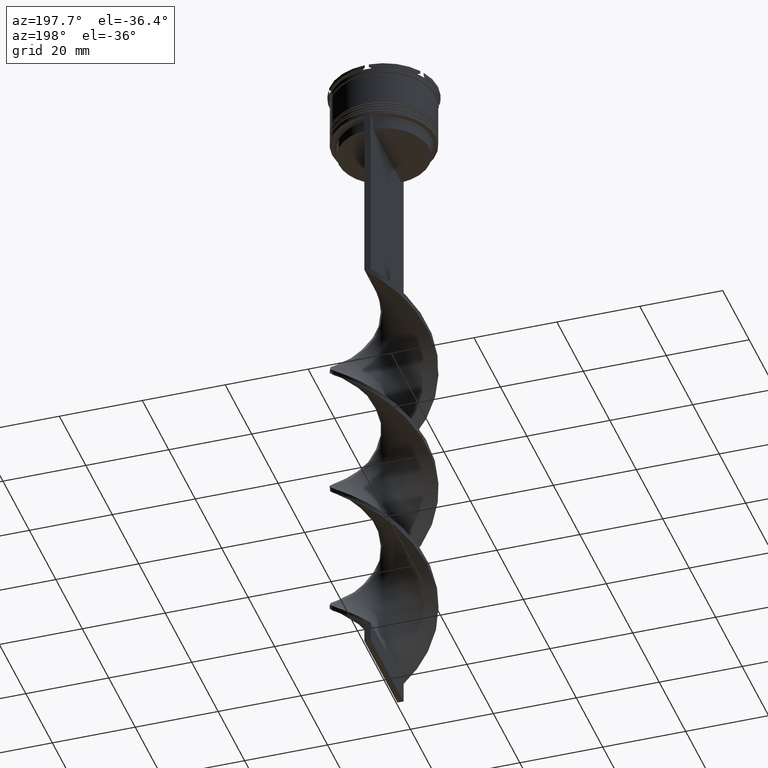
[diagram: clean part render]
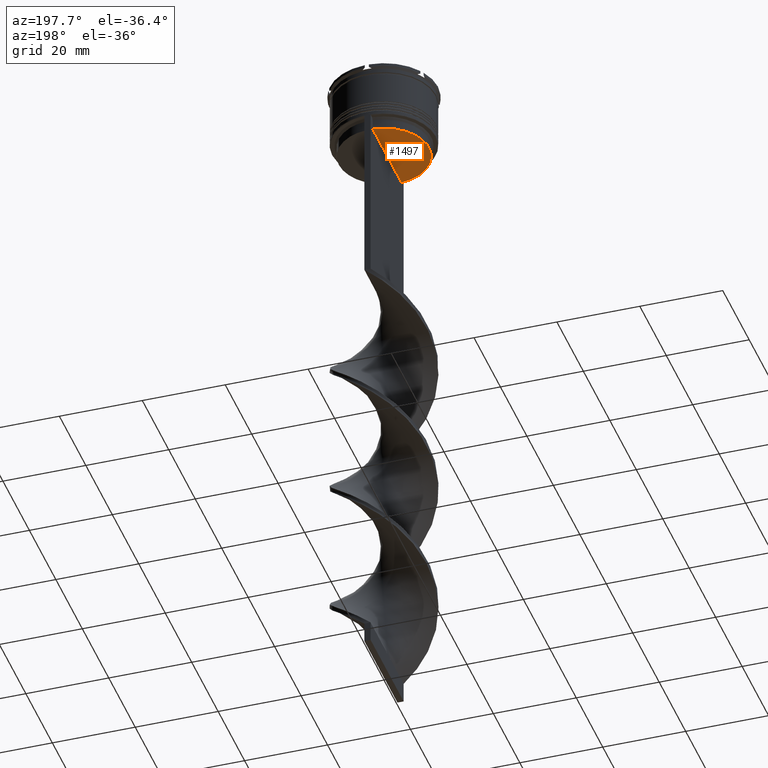
[diagram: same view with one face highlighted and labeled with its STEP entity id]
A machine part, auxiliary view. The second image highlights one B-rep face of the part: STEP entity #1497.
In plain terms, the highlighted planar face has unit normal (0, -0, 1).
Its self-contained STEP definition (entity closure, byte-faithful):
#46 = DIRECTION ( 'NONE',  ( 1.000000000000000000, 0.000000000000000000, 0.000000000000000000 ) ) ;
#448 = LINE ( 'NONE', #3339, #3097 ) ;
#646 = EDGE_LOOP ( 'NONE', ( #2756, #767 ) ) ;
#767 = ORIENTED_EDGE ( 'NONE', *, *, #3558, .T. ) ;
#826 = AXIS2_PLACEMENT_3D ( 'NONE', #3199, #933, #46 ) ;
#868 = DIRECTION ( 'NONE',  ( 0.000000000000000000, -1.000000000000000000, 0.000000000000000000 ) ) ;
#933 = DIRECTION ( 'NONE',  ( -0.000000000000000000, -0.000000000000000000, 1.000000000000000000 ) ) ;
#976 = PLANE ( 'NONE',  #3024 ) ;
#1308 = CARTESIAN_POINT ( 'NONE',  ( 0.000000000000000000, 10.90000000000000213, -17.00000000000000000 ) ) ;
#1497 = ADVANCED_FACE ( 'NONE', ( #1987 ), #976, .F. ) ;
#1899 = DIRECTION ( 'NONE',  ( 1.000000000000000000, 0.000000000000000000, 0.000000000000000000 ) ) ;
#1910 = VERTEX_POINT ( 'NONE', #3382 ) ;
#1987 = FACE_OUTER_BOUND ( 'NONE', #646, .T. ) ;
#2127 = CARTESIAN_POINT ( 'NONE',  ( -0.7499999999999997780, 10.87416663473574019, -17.00000000000000000 ) ) ;
#2684 = VERTEX_POINT ( 'NONE', #2127 ) ;
#2756 = ORIENTED_EDGE ( 'NONE', *, *, #3811, .F. ) ;
#3024 = AXIS2_PLACEMENT_3D ( 'NONE', #1308, #3810, #1899 ) ;
#3097 = VECTOR ( 'NONE', #868, 1000.000000000000000 ) ;
#3199 = CARTESIAN_POINT ( 'NONE',  ( 0.000000000000000000, 0.000000000000000000, -17.00000000000000000 ) ) ;
#3339 = CARTESIAN_POINT ( 'NONE',  ( -0.7499999999999997780, 10.90000000000000213, -17.00000000000000000 ) ) ;
#3382 = CARTESIAN_POINT ( 'NONE',  ( -0.7499999999999997780, -10.87416663473574019, -17.00000000000000000 ) ) ;
#3558 = EDGE_CURVE ( 'NONE', #2684, #1910, #448, .T. ) ;
#3810 = DIRECTION ( 'NONE',  ( 0.000000000000000000, -0.000000000000000000, 1.000000000000000000 ) ) ;
#3811 = EDGE_CURVE ( 'NONE', #2684, #1910, #3916, .T. ) ;
#3916 = CIRCLE ( 'NONE', #826, 10.90000000000000213 ) ;